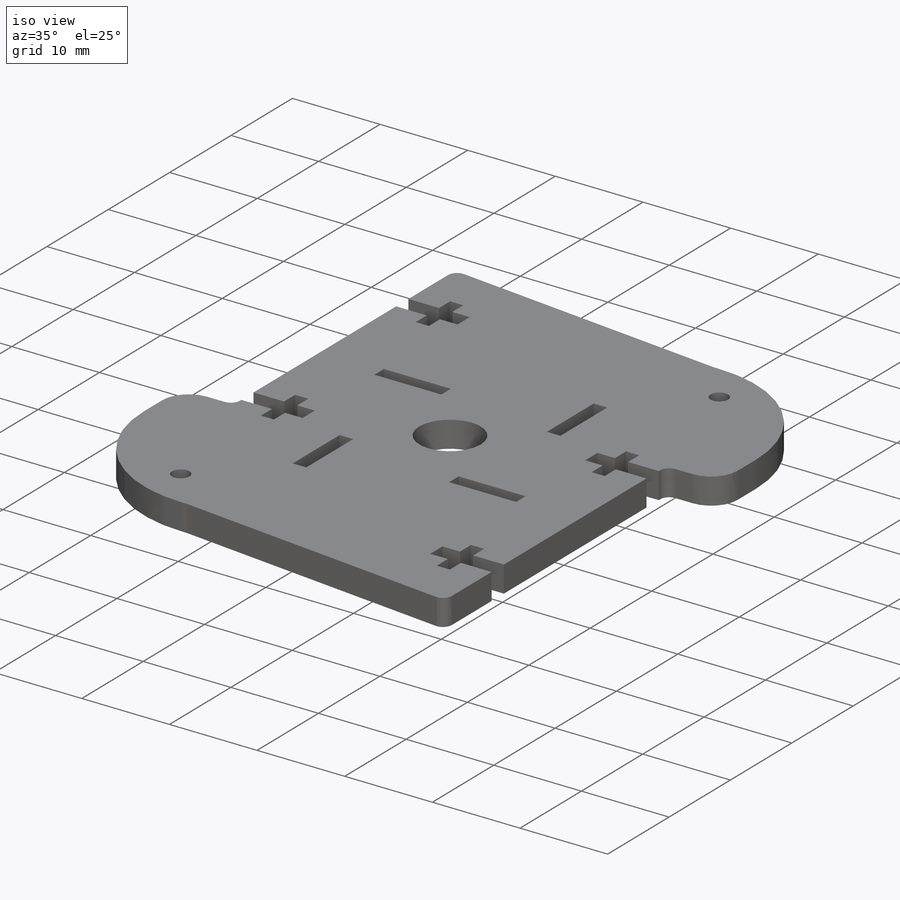
[diagram: iso view]
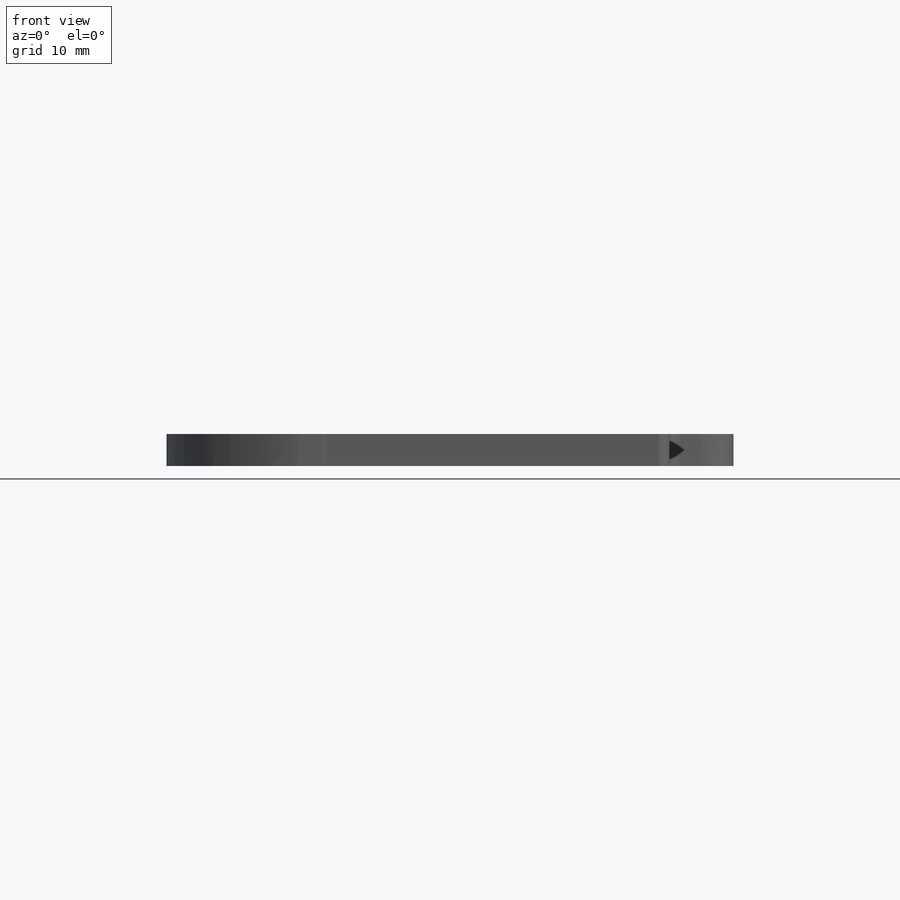
[diagram: front view]
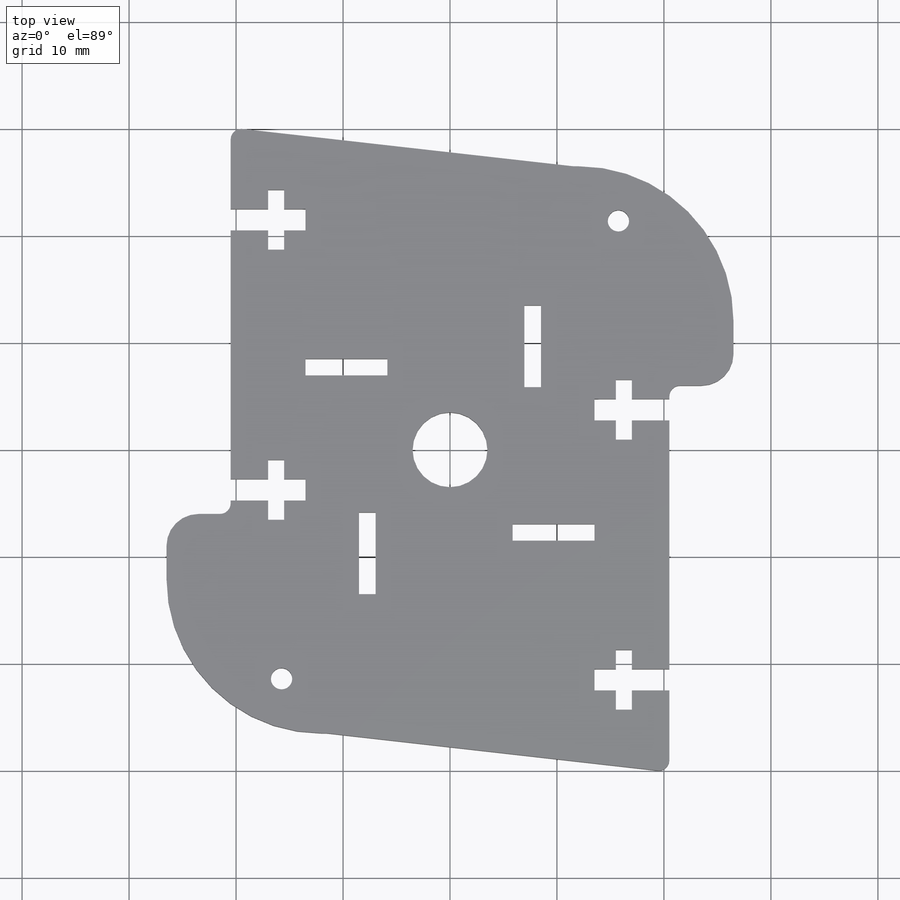
[diagram: top view]
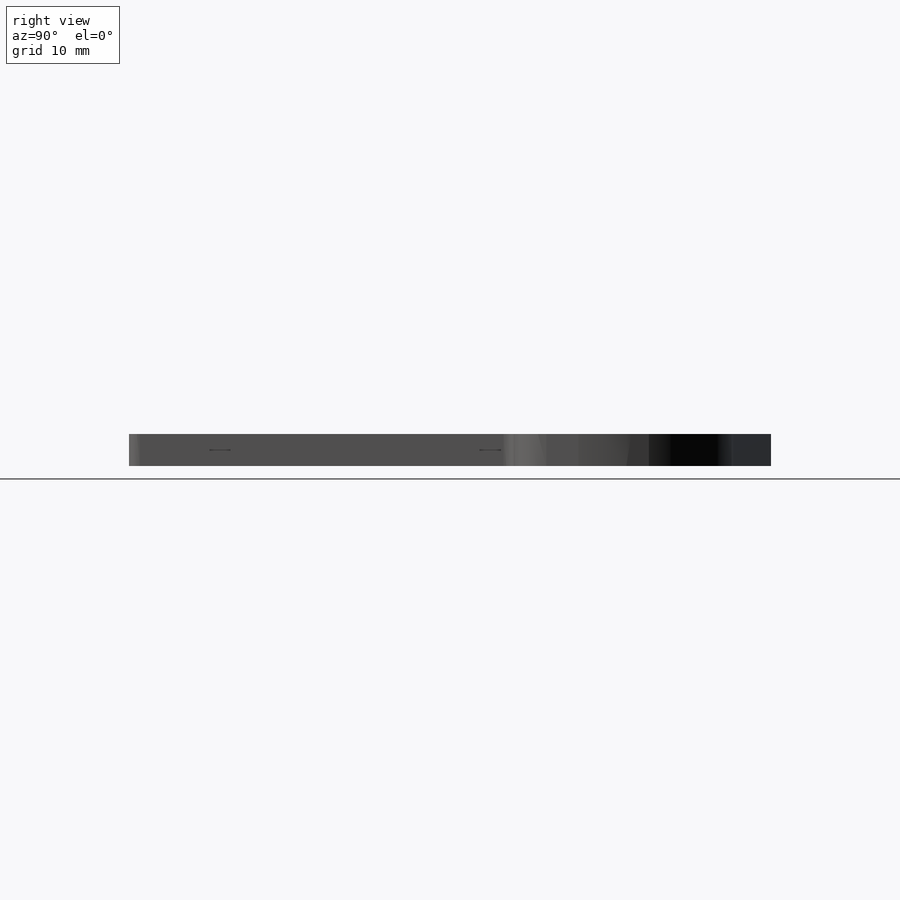
[diagram: right view]
SOLIDWORKS PART (.sldprt)
format: sldprt  version: not decoded by parser v0  size: 454,144 bytes
history: native  units: mm
features: sketch x8, cut_extrude x6, plane x3, extrude x2, fillet x2, material x1 (+9 scaffold rows collapsed)
feature tree (31):
  scaffold x9  (default folders/planes/origin — collapsed)
  material  "Acrílico (médio-alto impacto)"
  plane  "Plano frontal"
  plane  "Plano superior"
  plane  "Plano direito"
  sketch  "Esboço1"  dims[D1=53.0mm D2=60.0mm]
  extrude  "Ressalto-extrusão1"  Depth=3mm
  sketch  "Esboço4"  dims[c1.D1=7.65mm c1.D2=1.55mm c2.D1=7.65mm c2.D2=3.0mm c2.D3=3.0mm c3.D1=18.0mm c3.D2=13.0mm c4.D2=13.0mm]
  cut_extrude  "Corte-extrusão2"  Depth=10mm
  sketch  "Esboço5"  dims[c1.D1=5.0mm c1.D2=~44.213203mm c2.D1=5.0mm c2.D2=~44.213203mm c3.D2=90.0deg c3.D3=4.0mm c3.D1=25.0mm c3.D4=2.0]
  cut_extrude  "Corte-extrusão3"  [1 undecoded]
  sketch  "Esboço7"  dims[D1=7.0mm]
  cut_extrude  "Corte-extrusão6"  [1 undecoded]
  sketch  "Esboço8"  dims[D1=6.0mm D2=36.0mm D3=2.0]
  cut_extrude  "Corte-extrusão7"  [1 undecoded]
  fillet  "Filete2"  Radius=3mm
  fillet  "Filete3"  Radius=1mm
  sketch  "Esboço9"
  extrude  "encaixe_parafuso_acrilico"  Depth=7mm
  cut_extrude  "Corte-extrusão8"  [1 undecoded]
  sketch  "Esboço10"  dims[D1=14.5mm D2=2.0]
  cut_extrude  "Corte-extrusão9"  [1 undecoded]
  sketch  "Esboço11"
decode coverage: 11 of 18 modeling features carry decoded parameters
note: ~ marks probable driven/reference dimensions
note: 5 parameter values undecoded
summary: no parameter record found for 5 features
note: suppression state not decoded; provenance and decode notes live in map.json
